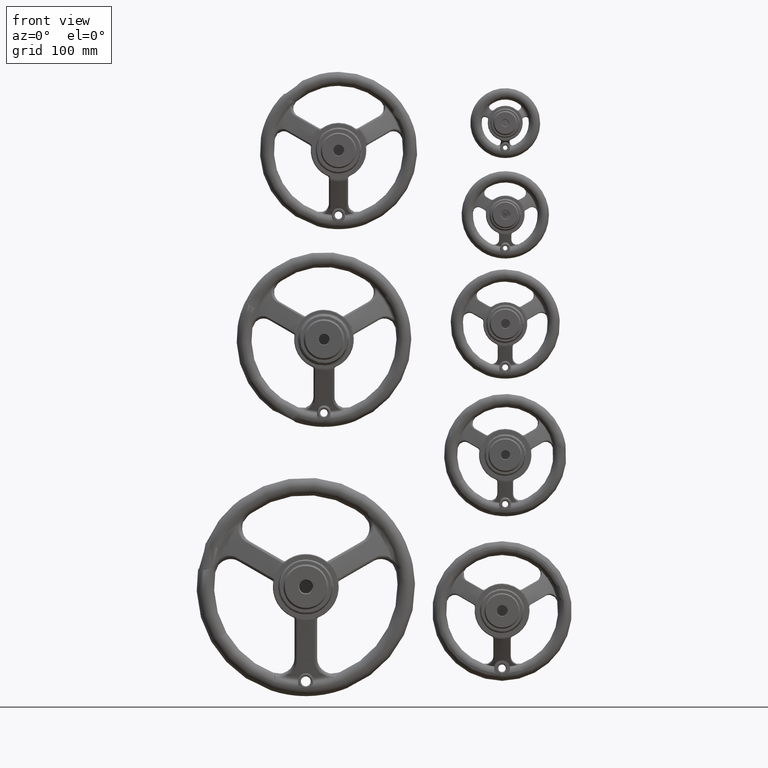
[diagram: clean part render]
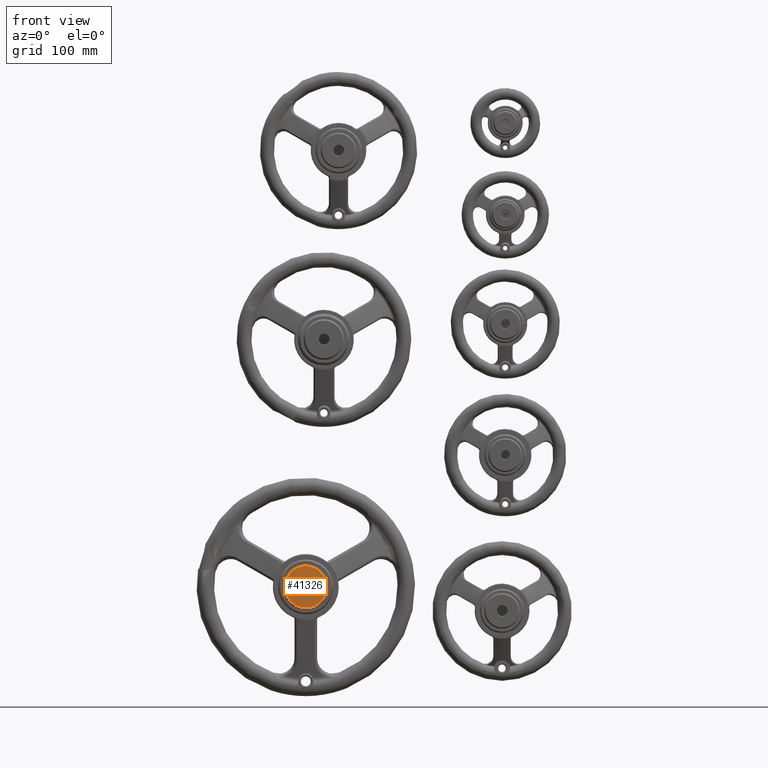
[diagram: same view with one face highlighted and labeled with its STEP entity id]
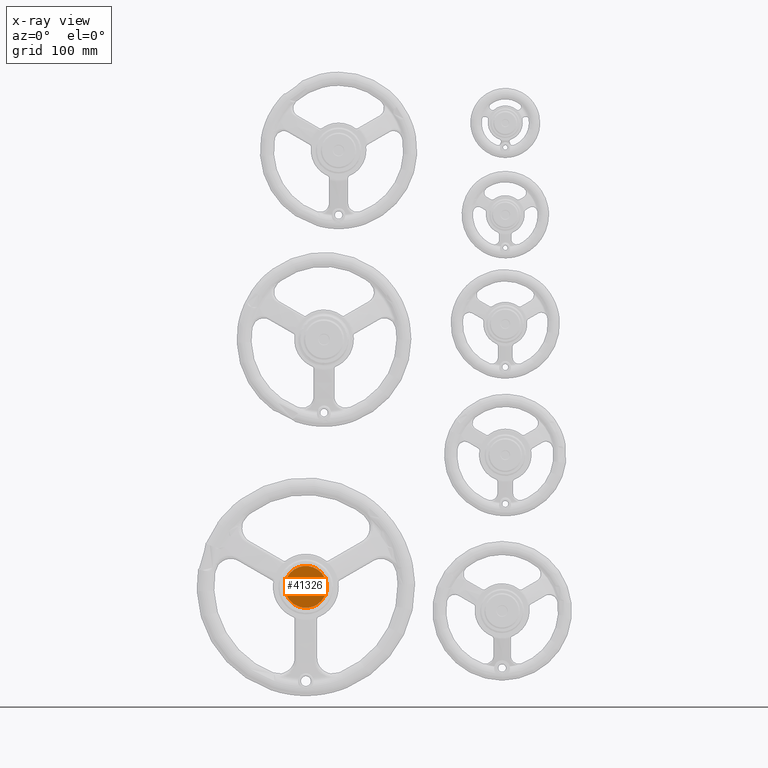
[diagram: x-ray of the same camera — body ghosted, the highlighted face saturated]
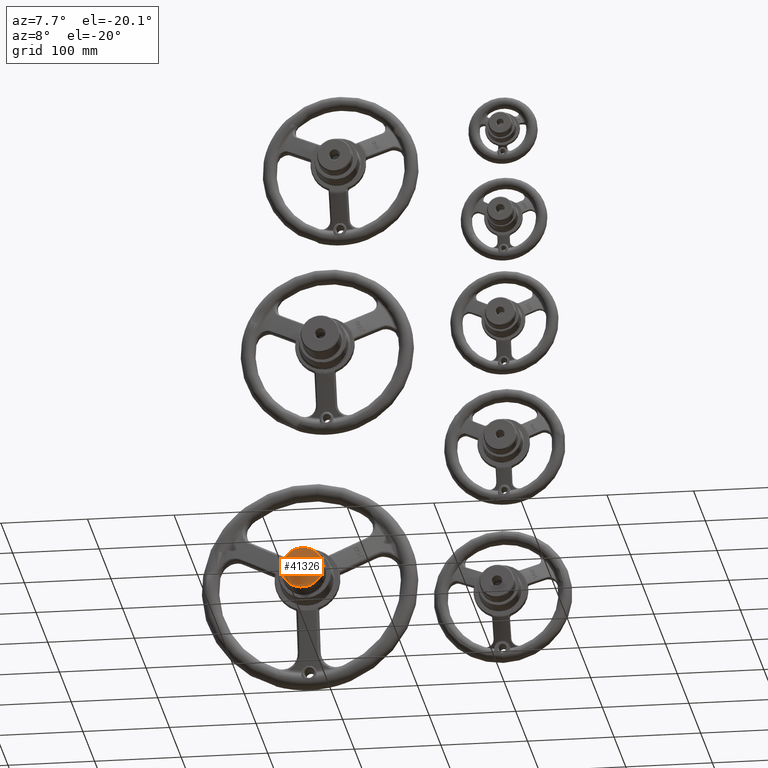
[diagram: same view with one face highlighted and labeled with its STEP entity id]
A machine part, front view. The second image highlights one B-rep face of the part: STEP entity #41326.
The next image is the same camera in x-ray: the body ghosted, the highlighted face saturated — about 0% of this face is hidden behind the body in this view.
A second angle (auxiliary view) of the same face is appended — the face is thin or edge-on in the first view.
In plain terms, the highlighted planar face has unit normal (-0, 1, -0).
Its self-contained STEP definition (entity closure, byte-faithful):
#1116=PLANE('',#44455);
#7839=FACE_OUTER_BOUND('',#10933,.T.);
#8250=FACE_BOUND('',#10934,.T.);
#10933=EDGE_LOOP('',(#38609));
#10934=EDGE_LOOP('',(#38610));
#15214=CIRCLE('',#44038,8.50000000000001);
#15262=CIRCLE('',#44111,24.0000000000003);
#18851=VERTEX_POINT('',#162447);
#18941=VERTEX_POINT('',#164548);
#24875=EDGE_CURVE('',#18851,#18851,#15214,.T.);
#24975=EDGE_CURVE('',#18941,#18941,#15262,.T.);
#38609=ORIENTED_EDGE('',*,*,#24975,.F.);
#38610=ORIENTED_EDGE('',*,*,#24875,.T.);
#41326=ADVANCED_FACE('',(#7839,#8250),#1116,.F.);
#44038=AXIS2_PLACEMENT_3D('',#162448,#50919,#50920);
#44111=AXIS2_PLACEMENT_3D('',#164549,#51070,#51071);
#44455=AXIS2_PLACEMENT_3D('',#179920,#51978,#51979);
#50919=DIRECTION('center_axis',(1.,0.,0.));
#50920=DIRECTION('ref_axis',(0.,0.,-1.));
#51070=DIRECTION('center_axis',(1.,0.,0.));
#51071=DIRECTION('ref_axis',(0.,6.12323399573674E-17,1.));
#51978=DIRECTION('center_axis',(1.,0.,0.));
#51979=DIRECTION('ref_axis',(0.,0.,-1.));
#162447=CARTESIAN_POINT('',(-77.,4.83337328494038E-13,8.50000000000001));
#162448=CARTESIAN_POINT('Origin',(-77.,4.83337328494038E-13,0.));
#164548=CARTESIAN_POINT('',(-76.9999999999999,4.83679550608336E-13,-24.0000000000003));
#164549=CARTESIAN_POINT('Origin',(-76.9999999999999,4.86324787694494E-13,
0.));
#179920=CARTESIAN_POINT('Origin',(-77.,4.865337441113E-13,0.));